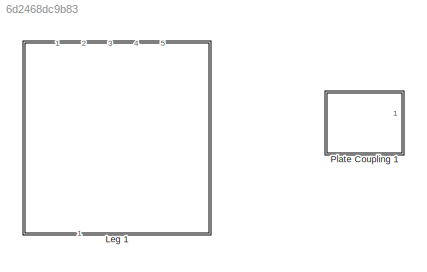
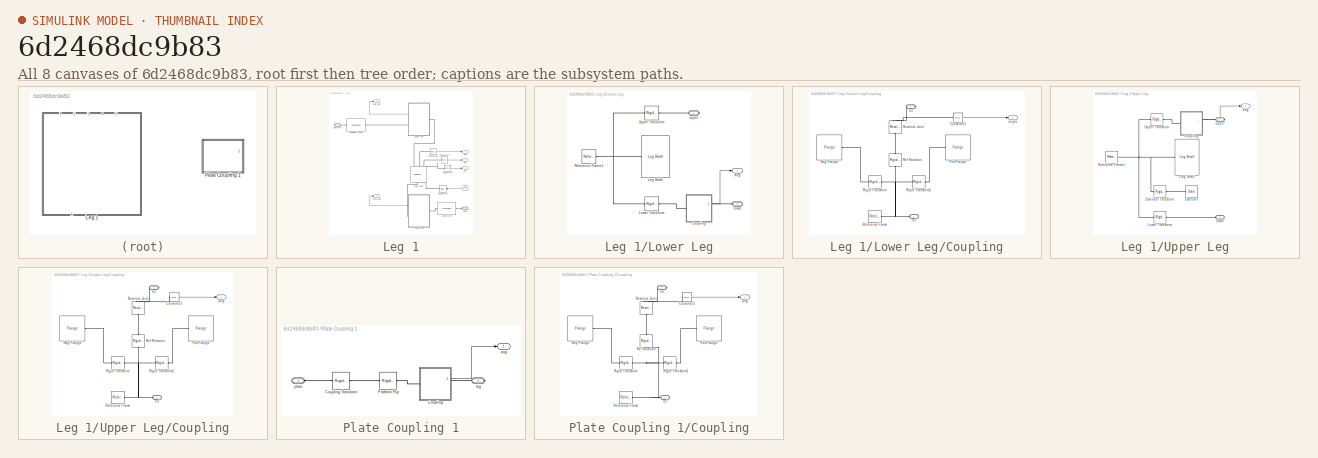
[diagram: thumbnail index - all 8 canvases of the model, root first then tree order]
MODEL slx_6d2468dc9b83
KIND library
CONFIG AbsTol = auto
CONFIG EnableMultiTasking = off
CONFIG FixedStep = auto
CONFIG MaxStep = auto
CONFIG MinStep = auto
CONFIG RelTol = 1e-3
CONFIG SampleTimeConstraint = Unconstrained
CONFIG Solver = VariableStepAuto
CONFIG SolverName = VariableStepAuto
CONFIG StartTime = 0.0
CONFIG StopTime = 10.0
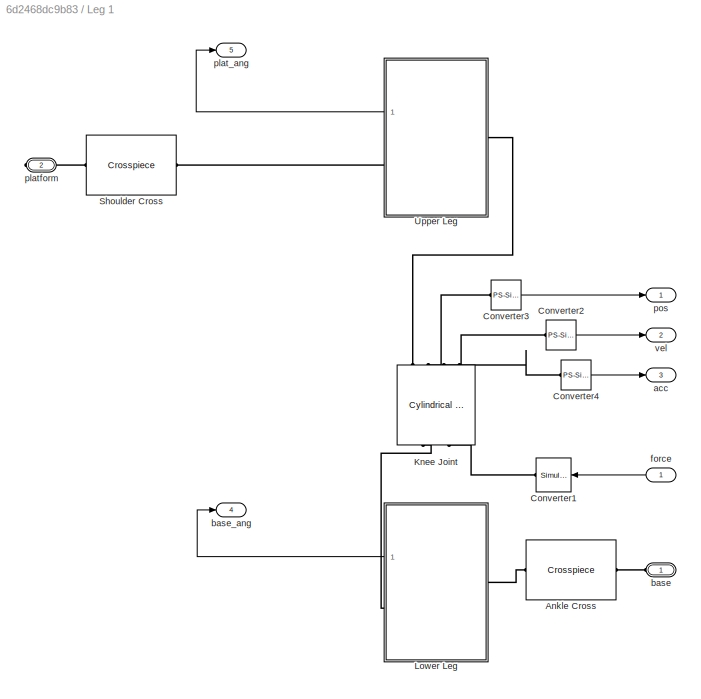
BLOCK [SubSystem] Leg 1
  Ports = [1, 5, 0, 0, 0, 1, 1]
  RequestExecContextInheritance = off
BLOCK [Reference] Leg 1/Ankle Cross  REF=sm_stewart_platform_lib/Crosspiece
  Ports = [0, 0, 0, 0, 0, 1, 1]
  SourceBlock = sm_stewart_platform_lib/Crosspiece
  SourceProductBaseCode = MS
  SourceProductName = Simscape Multibody
  SourceType = Crosspiece
BLOCK [Reference] Leg 1/Converter1  REF=nesl_utility/Simulink-PS
Converter
  Ports = [1, 0, 0, 0, 0, 0, 1]
  SourceBlock = nesl_utility/Simulink-PS\nConverter
  SourceProductBaseCode = SS
  SourceProductName = Simscape
  SourceType = Simulink-PS\nConverter
BLOCK [Reference] Leg 1/Converter2  REF=nesl_utility/PS-Simulink
Converter
  Ports = [0, 1, 0, 0, 0, 1]
  SourceBlock = nesl_utility/PS-Simulink\nConverter
  SourceProductBaseCode = SS
  SourceProductName = Simscape
  SourceType = PS-Simulink\nConverter
BLOCK [Reference] Leg 1/Converter3  REF=nesl_utility/PS-Simulink
Converter
  Ports = [0, 1, 0, 0, 0, 1]
  SourceBlock = nesl_utility/PS-Simulink\nConverter
  SourceProductBaseCode = SS
  SourceProductName = Simscape
  SourceType = PS-Simulink\nConverter
BLOCK [Reference] Leg 1/Converter4  REF=nesl_utility/PS-Simulink
Converter
  Ports = [0, 1, 0, 0, 0, 1]
  SourceBlock = nesl_utility/PS-Simulink\nConverter
  SourceProductBaseCode = SS
  SourceProductName = Simscape
  SourceType = PS-Simulink\nConverter
BLOCK [Reference] Leg 1/Knee Joint  REF=sm_lib/Joints/Cylindrical
Joint
  Ports = [0, 0, 0, 0, 0, 2, 4]
  SourceBlock = sm_lib/Joints/Cylindrical\nJoint
  SourceProductBaseCode = MS
  SourceProductName = Simscape Multibody
  SourceType = Cylindrical\nJoint
BLOCK [SubSystem] Leg 1/Lower Leg
  Ports = [0, 1, 0, 0, 0, 1, 1]
  RequestExecContextInheritance = off
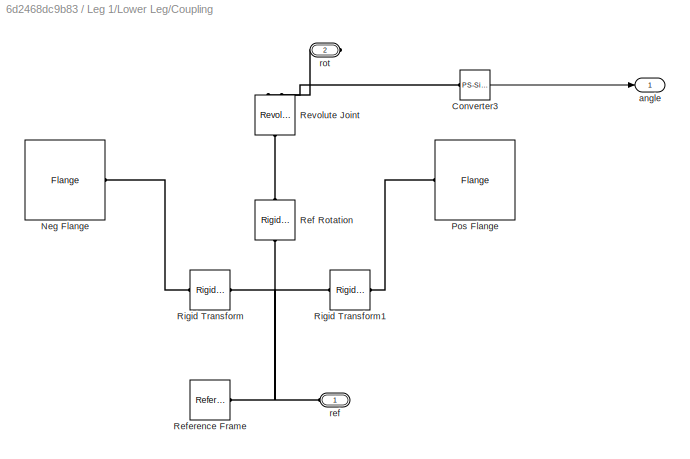
BLOCK [SubSystem] Leg 1/Lower Leg/Coupling
  AncestorBlock = sm_stewart_platform_lib/Coupling
  Ports = [0, 1, 0, 0, 0, 1, 1]
  RequestExecContextInheritance = off
BLOCK [Reference] Leg 1/Lower Leg/Coupling/Converter3  REF=nesl_utility/PS-Simulink
Converter
  Ports = [0, 1, 0, 0, 0, 1]
  SourceBlock = nesl_utility/PS-Simulink\nConverter
  SourceProductBaseCode = SS
  SourceProductName = Simscape
  SourceType = PS-Simulink\nConverter
BLOCK [Reference] Leg 1/Lower Leg/Coupling/Neg Flange  REF=sm_stewart_platform_lib/Flange
  Ports = [0, 0, 0, 0, 0, 0, 1]
  SourceBlock = sm_stewart_platform_lib/Flange
  SourceProductBaseCode = MS
  SourceProductName = Simscape Multibody
  SourceType = Flange
BLOCK [Reference] Leg 1/Lower Leg/Coupling/Pos Flange  REF=sm_stewart_platform_lib/Flange
  Ports = [0, 0, 0, 0, 0, 0, 1]
  SourceBlock = sm_stewart_platform_lib/Flange
  SourceProductBaseCode = MS
  SourceProductName = Simscape Multibody
  SourceType = Flange
BLOCK [Reference] Leg 1/Lower Leg/Coupling/Ref Rotation  REF=sm_lib/Frames and
Transforms/Rigid
Transform
  Ports = [0, 0, 0, 0, 0, 1, 1]
  SourceBlock = sm_lib/Frames and\nTransforms/Rigid\nTransform
  SourceProductBaseCode = MS
  SourceProductName = Simscape Multibody
  SourceType = Rigid\nTransform
BLOCK [Reference] Leg 1/Lower Leg/Coupling/Reference Frame  REF=sm_lib/Frames and
Transforms/Reference
Frame
  Ports = [0, 0, 0, 0, 0, 0, 1]
  SourceBlock = sm_lib/Frames and\nTransforms/Reference\nFrame
  SourceProductBaseCode = MS
  SourceProductName = Simscape Multibody
  SourceType = Reference\nFrame
BLOCK [Reference] Leg 1/Lower Leg/Coupling/Revolute Joint  REF=sm_lib/Joints/Revolute Joint
  Ports = [0, 0, 0, 0, 0, 1, 2]
  SourceBlock = sm_lib/Joints/Revolute Joint
  SourceProductBaseCode = MS
  SourceProductName = Simscape Multibody
  SourceType = Revolute Joint
BLOCK [Reference] Leg 1/Lower Leg/Coupling/Rigid Transform  REF=sm_lib/Frames and
Transforms/Rigid
Transform
  Ports = [0, 0, 0, 0, 0, 1, 1]
  SourceBlock = sm_lib/Frames and\nTransforms/Rigid\nTransform
  SourceProductBaseCode = MS
  SourceProductName = Simscape Multibody
  SourceType = Rigid\nTransform
BLOCK [Reference] Leg 1/Lower Leg/Coupling/Rigid Transform1  REF=sm_lib/Frames and
Transforms/Rigid
Transform
  Ports = [0, 0, 0, 0, 0, 1, 1]
  SourceBlock = sm_lib/Frames and\nTransforms/Rigid\nTransform
  SourceProductBaseCode = MS
  SourceProductName = Simscape Multibody
  SourceType = Rigid\nTransform
BLOCK [Outport] Leg 1/Lower Leg/Coupling/angle
  IconDisplay = Port number
BLOCK [PMIOPort] Leg 1/Lower Leg/Coupling/ref
  Side = Left
BLOCK [PMIOPort] Leg 1/Lower Leg/Coupling/rot
  Port = 2
  Side = Right
BLOCK [Reference] Leg 1/Lower Leg/Leg Shaft  REF=sm_stewart_platform_lib/Leg Shaft
  Ports = [0, 0, 0, 0, 0, 1]
  SourceBlock = sm_stewart_platform_lib/Leg Shaft
  SourceProductBaseCode = MS
  SourceProductName = Simscape Multibody
  SourceType = Leg Shaft
BLOCK [Reference] Leg 1/Lower Leg/Lower Transform  REF=sm_lib/Frames and
Transforms/Rigid
Transform
  Ports = [0, 0, 0, 0, 0, 1, 1]
  SourceBlock = sm_lib/Frames and\nTransforms/Rigid\nTransform
  SourceProductBaseCode = MS
  SourceProductName = Simscape Multibody
  SourceType = Rigid\nTransform
BLOCK [Reference] Leg 1/Lower Leg/Reference Frame1  REF=sm_lib/Frames and
Transforms/Reference
Frame
  Ports = [0, 0, 0, 0, 0, 0, 1]
  SourceBlock = sm_lib/Frames and\nTransforms/Reference\nFrame
  SourceProductBaseCode = MS
  SourceProductName = Simscape Multibody
  SourceType = Reference\nFrame
BLOCK [Reference] Leg 1/Lower Leg/Upper Transform  REF=sm_lib/Frames and
Transforms/Rigid
Transform
  Ports = [0, 0, 0, 0, 0, 1, 1]
  SourceBlock = sm_lib/Frames and\nTransforms/Rigid\nTransform
  SourceProductBaseCode = MS
  SourceProductName = Simscape Multibody
  SourceType = Rigid\nTransform
BLOCK [Outport] Leg 1/Lower Leg/ang
  IconDisplay = Port number
BLOCK [PMIOPort] Leg 1/Lower Leg/lower
  Port = 2
  Side = Left
BLOCK [PMIOPort] Leg 1/Lower Leg/upper
  Side = Right
BLOCK [Reference] Leg 1/Shoulder Cross  REF=sm_stewart_platform_lib/Crosspiece
  Ports = [0, 0, 0, 0, 0, 1, 1]
  SourceBlock = sm_stewart_platform_lib/Crosspiece
  SourceProductBaseCode = MS
  SourceProductName = Simscape Multibody
  SourceType = Crosspiece
BLOCK [SubSystem] Leg 1/Upper Leg
  Ports = [0, 1, 0, 0, 0, 1, 1]
  RequestExecContextInheritance = off
BLOCK [SubSystem] Leg 1/Upper Leg/Coupling
  AncestorBlock = sm_stewart_platform_lib/Coupling
  Ports = [0, 1, 0, 0, 0, 1, 1]
  RequestExecContextInheritance = off
BLOCK [Reference] Leg 1/Upper Leg/Coupling/Converter3  REF=nesl_utility/PS-Simulink
Converter
  Ports = [0, 1, 0, 0, 0, 1]
  SourceBlock = nesl_utility/PS-Simulink\nConverter
  SourceProductBaseCode = SS
  SourceProductName = Simscape
  SourceType = PS-Simulink\nConverter
BLOCK [Reference] Leg 1/Upper Leg/Coupling/Neg Flange  REF=sm_stewart_platform_lib/Flange
  Ports = [0, 0, 0, 0, 0, 0, 1]
  SourceBlock = sm_stewart_platform_lib/Flange
  SourceProductBaseCode = MS
  SourceProductName = Simscape Multibody
  SourceType = Flange
BLOCK [Reference] Leg 1/Upper Leg/Coupling/Pos Flange  REF=sm_stewart_platform_lib/Flange
  Ports = [0, 0, 0, 0, 0, 0, 1]
  SourceBlock = sm_stewart_platform_lib/Flange
  SourceProductBaseCode = MS
  SourceProductName = Simscape Multibody
  SourceType = Flange
BLOCK [Reference] Leg 1/Upper Leg/Coupling/Ref Rotation  REF=sm_lib/Frames and
Transforms/Rigid
Transform
  Ports = [0, 0, 0, 0, 0, 1, 1]
  SourceBlock = sm_lib/Frames and\nTransforms/Rigid\nTransform
  SourceProductBaseCode = MS
  SourceProductName = Simscape Multibody
  SourceType = Rigid\nTransform
BLOCK [Reference] Leg 1/Upper Leg/Coupling/Reference Frame  REF=sm_lib/Frames and
Transforms/Reference
Frame
  Ports = [0, 0, 0, 0, 0, 0, 1]
  SourceBlock = sm_lib/Frames and\nTransforms/Reference\nFrame
  SourceProductBaseCode = MS
  SourceProductName = Simscape Multibody
  SourceType = Reference\nFrame
BLOCK [Reference] Leg 1/Upper Leg/Coupling/Revolute Joint  REF=sm_lib/Joints/Revolute Joint
  Ports = [0, 0, 0, 0, 0, 1, 2]
  SourceBlock = sm_lib/Joints/Revolute Joint
  SourceProductBaseCode = MS
  SourceProductName = Simscape Multibody
  SourceType = Revolute Joint
BLOCK [Reference] Leg 1/Upper Leg/Coupling/Rigid Transform  REF=sm_lib/Frames and
Transforms/Rigid
Transform
  Ports = [0, 0, 0, 0, 0, 1, 1]
  SourceBlock = sm_lib/Frames and\nTransforms/Rigid\nTransform
  SourceProductBaseCode = MS
  SourceProductName = Simscape Multibody
  SourceType = Rigid\nTransform
BLOCK [Reference] Leg 1/Upper Leg/Coupling/Rigid Transform1  REF=sm_lib/Frames and
Transforms/Rigid
Transform
  Ports = [0, 0, 0, 0, 0, 1, 1]
  SourceBlock = sm_lib/Frames and\nTransforms/Rigid\nTransform
  SourceProductBaseCode = MS
  SourceProductName = Simscape Multibody
  SourceType = Rigid\nTransform
BLOCK [Outport] Leg 1/Upper Leg/Coupling/ang
  IconDisplay = Port number
BLOCK [PMIOPort] Leg 1/Upper Leg/Coupling/ref
  Side = Left
BLOCK [PMIOPort] Leg 1/Upper Leg/Coupling/rot
  Port = 2
  Side = Right
BLOCK [Reference] Leg 1/Upper Leg/Extender  REF=sm_lib/Body Elements/Solid
  Ports = [0, 0, 0, 0, 0, 0, 1]
  SourceBlock = sm_lib/Body Elements/Solid
  SourceProductBaseCode = MS
  SourceProductName = Simscape Multibody
  SourceType = Solid
BLOCK [Reference] Leg 1/Upper Leg/Extender Transform  REF=sm_lib/Frames and
Transforms/Rigid
Transform
  Ports = [0, 0, 0, 0, 0, 1, 1]
  SourceBlock = sm_lib/Frames and\nTransforms/Rigid\nTransform
  SourceProductBaseCode = MS
  SourceProductName = Simscape Multibody
  SourceType = Rigid\nTransform
BLOCK [Reference] Leg 1/Upper Leg/Leg Shaft  REF=sm_stewart_platform_lib/Leg Shaft
  Ports = [0, 0, 0, 0, 0, 1]
  SourceBlock = sm_stewart_platform_lib/Leg Shaft
  SourceProductBaseCode = MS
  SourceProductName = Simscape Multibody
  SourceType = Leg Shaft
BLOCK [Reference] Leg 1/Upper Leg/Lower Transform  REF=sm_lib/Frames and
Transforms/Rigid
Transform
  Ports = [0, 0, 0, 0, 0, 1, 1]
  SourceBlock = sm_lib/Frames and\nTransforms/Rigid\nTransform
  SourceProductBaseCode = MS
  SourceProductName = Simscape Multibody
  SourceType = Rigid\nTransform
BLOCK [Reference] Leg 1/Upper Leg/Reference Frame1  REF=sm_lib/Frames and
Transforms/Reference
Frame
  Ports = [0, 0, 0, 0, 0, 0, 1]
  SourceBlock = sm_lib/Frames and\nTransforms/Reference\nFrame
  SourceProductBaseCode = MS
  SourceProductName = Simscape Multibody
  SourceType = Reference\nFrame
BLOCK [Reference] Leg 1/Upper Leg/Upper Transform  REF=sm_lib/Frames and
Transforms/Rigid
Transform
  Ports = [0, 0, 0, 0, 0, 1, 1]
  SourceBlock = sm_lib/Frames and\nTransforms/Rigid\nTransform
  SourceProductBaseCode = MS
  SourceProductName = Simscape Multibody
  SourceType = Rigid\nTransform
BLOCK [Outport] Leg 1/Upper Leg/ang
  IconDisplay = Port number
BLOCK [PMIOPort] Leg 1/Upper Leg/lower
  Side = Left
BLOCK [PMIOPort] Leg 1/Upper Leg/upper
  Port = 2
  Side = Right
BLOCK [Outport] Leg 1/acc
  IconDisplay = Port number
  Port = 3
BLOCK [PMIOPort] Leg 1/base
  Side = Left
BLOCK [Outport] Leg 1/base_ang
  IconDisplay = Port number
  Port = 4
BLOCK [Inport] Leg 1/force
  IconDisplay = Port number
BLOCK [Outport] Leg 1/plat_ang
  IconDisplay = Port number
  Port = 5
BLOCK [PMIOPort] Leg 1/platform
  Port = 2
  Side = Right
BLOCK [Outport] Leg 1/pos
  IconDisplay = Port number
BLOCK [Outport] Leg 1/vel
  IconDisplay = Port number
  Port = 2
BLOCK [SubSystem] Plate Coupling 1
  AncestorBlock = sm_stewart_platform_lib/Plate Coupling
  Ports = [0, 1, 0, 0, 0, 1, 1]
  RequestExecContextInheritance = off
BLOCK [SubSystem] Plate Coupling 1/Coupling
  AncestorBlock = sm_stewart_platform_lib/Coupling
  Ports = [0, 1, 0, 0, 0, 1, 1]
  RequestExecContextInheritance = off
BLOCK [Reference] Plate Coupling 1/Coupling Transform  REF=sm_lib/Frames and
Transforms/Rigid
Transform
  Ports = [0, 0, 0, 0, 0, 1, 1]
  SourceBlock = sm_lib/Frames and\nTransforms/Rigid\nTransform
  SourceProductBaseCode = MS
  SourceProductName = Simscape Multibody
  SourceType = Rigid\nTransform
BLOCK [Reference] Plate Coupling 1/Coupling/Converter3  REF=nesl_utility/PS-Simulink
Converter
  Ports = [0, 1, 0, 0, 0, 1]
  SourceBlock = nesl_utility/PS-Simulink\nConverter
  SourceProductBaseCode = SS
  SourceProductName = Simscape
  SourceType = PS-Simulink\nConverter
BLOCK [Reference] Plate Coupling 1/Coupling/Neg Flange  REF=sm_stewart_platform_lib/Flange
  Ports = [0, 0, 0, 0, 0, 0, 1]
  SourceBlock = sm_stewart_platform_lib/Flange
  SourceProductBaseCode = MS
  SourceProductName = Simscape Multibody
  SourceType = Flange
BLOCK [Reference] Plate Coupling 1/Coupling/Pos Flange  REF=sm_stewart_platform_lib/Flange
  Ports = [0, 0, 0, 0, 0, 0, 1]
  SourceBlock = sm_stewart_platform_lib/Flange
  SourceProductBaseCode = MS
  SourceProductName = Simscape Multibody
  SourceType = Flange
BLOCK [Reference] Plate Coupling 1/Coupling/Ref Rotation  REF=sm_lib/Frames and
Transforms/Rigid
Transform
  Ports = [0, 0, 0, 0, 0, 1, 1]
  SourceBlock = sm_lib/Frames and\nTransforms/Rigid\nTransform
  SourceProductBaseCode = MS
  SourceProductName = Simscape Multibody
  SourceType = Rigid\nTransform
BLOCK [Reference] Plate Coupling 1/Coupling/Reference Frame  REF=sm_lib/Frames and
Transforms/Reference
Frame
  Ports = [0, 0, 0, 0, 0, 0, 1]
  SourceBlock = sm_lib/Frames and\nTransforms/Reference\nFrame
  SourceProductBaseCode = MS
  SourceProductName = Simscape Multibody
  SourceType = Reference\nFrame
BLOCK [Reference] Plate Coupling 1/Coupling/Revolute Joint  REF=sm_lib/Joints/Revolute Joint
  Ports = [0, 0, 0, 0, 0, 1, 2]
  SourceBlock = sm_lib/Joints/Revolute Joint
  SourceProductBaseCode = MS
  SourceProductName = Simscape Multibody
  SourceType = Revolute Joint
BLOCK [Reference] Plate Coupling 1/Coupling/Rigid Transform  REF=sm_lib/Frames and
Transforms/Rigid
Transform
  Ports = [0, 0, 0, 0, 0, 1, 1]
  SourceBlock = sm_lib/Frames and\nTransforms/Rigid\nTransform
  SourceProductBaseCode = MS
  SourceProductName = Simscape Multibody
  SourceType = Rigid\nTransform
BLOCK [Reference] Plate Coupling 1/Coupling/Rigid Transform1  REF=sm_lib/Frames and
Transforms/Rigid
Transform
  Ports = [0, 0, 0, 0, 0, 1, 1]
  SourceBlock = sm_lib/Frames and\nTransforms/Rigid\nTransform
  SourceProductBaseCode = MS
  SourceProductName = Simscape Multibody
  SourceType = Rigid\nTransform
BLOCK [Outport] Plate Coupling 1/Coupling/ang
  IconDisplay = Port number
BLOCK [PMIOPort] Plate Coupling 1/Coupling/ref
  Side = Left
BLOCK [PMIOPort] Plate Coupling 1/Coupling/rot
  Port = 2
  Side = Right
BLOCK [Reference] Plate Coupling 1/Platform Flip  REF=sm_lib/Frames and
Transforms/Rigid
Transform
  Ports = [0, 0, 0, 0, 0, 1, 1]
  SourceBlock = sm_lib/Frames and\nTransforms/Rigid\nTransform
  SourceProductBaseCode = MS
  SourceProductName = Simscape Multibody
  SourceType = Rigid\nTransform
BLOCK [Outport] Plate Coupling 1/ang
  IconDisplay = Port number
BLOCK [PMIOPort] Plate Coupling 1/leg
  Port = 2
  Side = Right
BLOCK [PMIOPort] Plate Coupling 1/plate
  Side = Left
LINE Leg 1/Converter2:1 -> Leg 1/vel:1
LINE Leg 1/Converter3:1 -> Leg 1/pos:1
LINE Leg 1/Converter4:1 -> Leg 1/acc:1
LINE Leg 1/Lower Leg/Coupling:1 -> Leg 1/Lower Leg/ang:1
LINE Leg 1/Lower Leg:1 -> Leg 1/base_ang:1
LINE Leg 1/Upper Leg/Coupling:1 -> Leg 1/Upper Leg/ang:1
LINE Leg 1/Upper Leg:1 -> Leg 1/plat_ang:1
LINE Leg 1/force:1 -> Leg 1/Converter1:1
PLINE Leg 1/Ankle Cross:LConn1 -- Leg 1/base:RConn1
PLINE Leg 1/Ankle Cross:RConn1 -- Leg 1/Lower Leg:LConn1
PLINE Leg 1/Converter1:RConn1 -- Leg 1/Knee Joint:LConn2
PLINE Leg 1/Converter2:LConn1 -- Leg 1/Knee Joint:RConn3
PLINE Leg 1/Converter3:LConn1 -- Leg 1/Knee Joint:RConn2
PLINE Leg 1/Converter4:LConn1 -- Leg 1/Knee Joint:RConn4
PLINE Leg 1/Knee Joint:LConn1 -- Leg 1/Lower Leg:RConn1
PLINE Leg 1/Knee Joint:RConn1 -- Leg 1/Upper Leg:LConn1
PLINE Leg 1/Lower Leg/Coupling:LConn1 -- Leg 1/Lower Leg/Lower Transform:RConn1
PLINE Leg 1/Lower Leg/Coupling:RConn1 -- Leg 1/Lower Leg/lower:RConn1
PNET net1: Leg 1/Lower Leg/Leg Shaft:LConn1 -- Leg 1/Lower Leg/Lower Transform:LConn1 -- Leg 1/Lower Leg/Reference Frame1:RConn1 -- Leg 1/Lower Leg/Upper Transform:LConn1
PLINE Leg 1/Lower Leg/Upper Transform:RConn1 -- Leg 1/Lower Leg/upper:RConn1
PLINE Leg 1/Shoulder Cross:LConn1 -- Leg 1/Upper Leg:RConn1
PLINE Leg 1/Shoulder Cross:RConn1 -- Leg 1/platform:RConn1
PLINE Leg 1/Upper Leg/Coupling:LConn1 -- Leg 1/Upper Leg/Upper Transform:RConn1
PLINE Leg 1/Upper Leg/Coupling:RConn1 -- Leg 1/Upper Leg/upper:RConn1
PNET net2: Leg 1/Upper Leg/Extender Transform:LConn1 -- Leg 1/Upper Leg/Leg Shaft:LConn1 -- Leg 1/Upper Leg/Lower Transform:LConn1 -- Leg 1/Upper Leg/Reference Frame1:RConn1 -- Leg 1/Upper Leg/Upper Transform:LConn1
PLINE Leg 1/Upper Leg/Extender Transform:RConn1 -- Leg 1/Upper Leg/Extender:RConn1
PLINE Leg 1/Upper Leg/Lower Transform:RConn1 -- Leg 1/Upper Leg/lower:RConn1
note: PNET lines group multi-terminal physical nets as a canonical sorted terminal list (undirected conserving connections); 2-terminal nets keep the pairwise PLINE form
